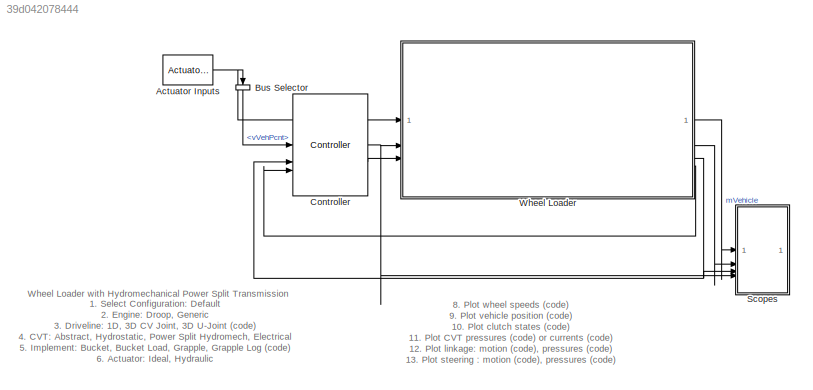
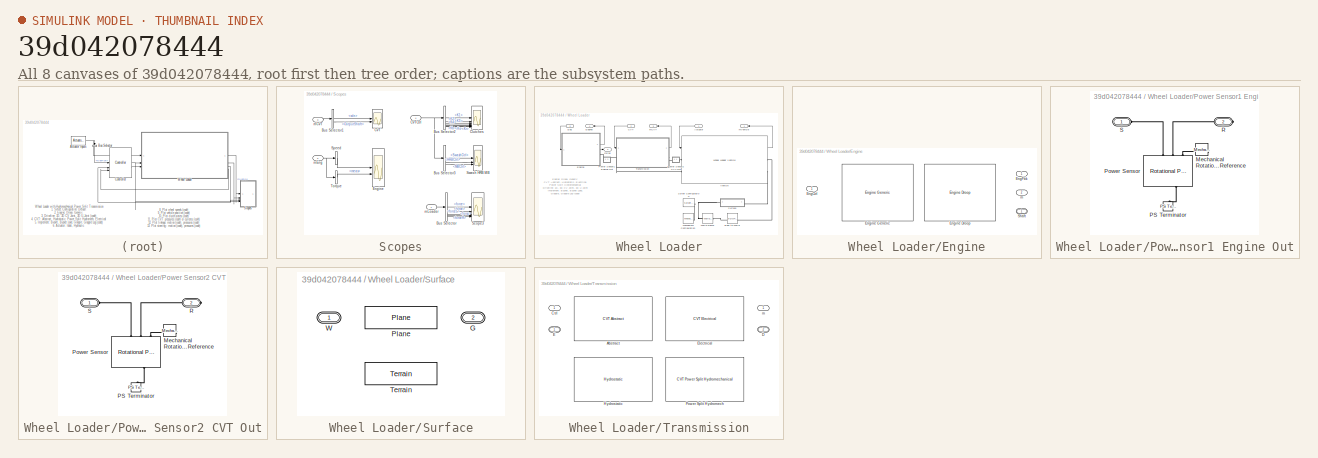
[diagram: thumbnail index - all 8 canvases of the model, root first then tree order]
MODEL slx_39d042078444
KIND model
CONFIG AbsTol = 1e-3
CONFIG EnableMultiTasking = on
CONFIG FixedStep = Ts
CONFIG PostLoadFcn = sm_wheel_loader_config_impl(bdroot,'Bucket')
CONFIG SolverName = daessc
CONFIG StartFcn = tic
CONFIG StopFcn = Elapsed_Sim_Time = toc;\ndisp(['Elapsed Sim Time = ' num2str(Elapsed_Sim_Time)]);
CONFIG StopTime = stopTime
BLOCK [Reference] Actuator Inputs  REF=sm_wheel_loader_lib/Actuator Inputs  (lib defined in slx_2f13f0afc9e9, slx_78fdec152d5c)
  AttributesFormatString = %<popup_impl>
  SourceBlock = sm_wheel_loader_lib/Actuator Inputs
BLOCK [BusSelector] Bus Selector
  NameLocation = right
  OutputSignals = Operator.vVehPcnt
BLOCK [Reference] Controller  REF=sm_wheel_loader_lib/Controller  (lib defined in slx_2f13f0afc9e9, slx_78fdec152d5c)
  LibrarySourceBlock = sm_wheel_loader_lib/Controller New
  SourceBlock = sm_wheel_loader_lib/Controller
  SourceType = SubSystem
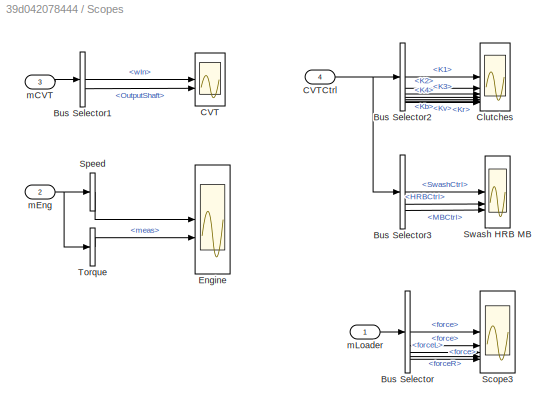
BLOCK [SubSystem] Scopes
BLOCK [BusSelector] Scopes/Bus Selector
  OutputSignals = Linkage.Tilt.force,Linkage.Lift.force,Linkage.Impl.forceL,Linkage.Impl.forceR,Steer.force
BLOCK [BusSelector] Scopes/Bus Selector1
  OutputSignals = wIn,OutputShaft
BLOCK [BusSelector] Scopes/Bus Selector2
  NameLocation = top
  OutputSignals = K1,K2,K3,K4,Kb,Kv,Kr
BLOCK [BusSelector] Scopes/Bus Selector3
  OutputSignals = SwashCtrl,HRBCtrl,MBCtrl
BLOCK [Scope] Scopes/CVT
  ActiveDisplayYMaximum = 1460.04785
  ActiveDisplayYMinimum = -1460.02488
  DataLoggingVariableName = ScopeData4
  Floating = off
  GraphicalSettings = {"GraphicalSettings":{"LegacySettings":true,"Style":{"Style":{"AxesColor":"[0 0 0]","ChannelNames":["",""],"ColorOrder":"[1 1 0.0666666666666667;0.0745098039215686 0.623529411764706 1;1 0.411764705882353 0.16078431372549;0.392156862745098 0.831372549019608 0.0745098039215686;0.717647058823529 0.274509803921569 1;0.0588235294117647 1 1;1 0.0745098039215686 0.650980392156863]","CurrentConfiguration"...<+374ch>
  LayoutDimensionsString = [2 1]
  MultipleDisplayCache = [{"MaxYLimMag":1460.04785,"MaxYLimReal":1460.04785,"MinYLimMag":0,"MinYLimReal":-1460.02488,"PlotAsMagnitudePhase":false,"ShowGrid":true,"ShowLegend":false,"Title":"%<SignalLabel>","YLabel":""},{"MaxYLimMag":10,"MaxYLimReal":11.77737,"MinYLimMag":0,"MinYLimReal":10.91361,"PlotAsMagnitudePhase":false,"ShowGrid":true,"ShowLegend":false,"Title":"%<SignalLabel>","YLabel":""}]
  NumInputPorts = 2
  WasSavedAsWebScope = on
  WindowPosition = [434 93 560 420]
BLOCK [Inport] Scopes/CVTCtrl
  Port = 4
BLOCK [Scope] Scopes/Clutches
  ActiveDisplayYMaximum = 1.125
  ActiveDisplayYMinimum = -0.125
  DataLoggingVariableName = ScopeData3
  Floating = off
  GraphicalSettings = {"GraphicalSettings":{"LegacySettings":true,"Style":{"Style":{"AxesColor":"[0 0 0]","ChannelNames":["","","","","","","",""],"ColorOrder":"[1 1 0.0666666666666667;0.0745098039215686 0.623529411764706 1;1 0.411764705882353 0.16078431372549;0.392156862745098 0.831372549019608 0.0745098039215686;0.717647058823529 0.274509803921569 1;0.0588235294117647 1 1;1 0.0745098039215686 0.650980392156863]","Cur...<+586ch>
  LayoutDimensionsString = [4 2]
  MultipleDisplayCache = [{"MaxYLimMag":1.125,"MaxYLimReal":1.125,"MinYLimMag":0,"MinYLimReal":-0.125,"PlotAsMagnitudePhase":false,"ShowGrid":true,"ShowLegend":false,"Title":"%<SignalLabel>","YLabel":""},{"MaxYLimMag":10,"MaxYLimReal":1.125,"MinYLimMag":0,"MinYLimReal":-0.125,"PlotAsMagnitudePhase":false,"ShowGrid":true,"ShowLegend":false,"Title":"%<SignalLabel>","YLabel":""},{"MaxYLimMag":10,"MaxYLimReal":1.125,"MinYLimM...<+976ch>
  NumInputPorts = 7
  WasSavedAsWebScope = on
BLOCK [Scope] Scopes/Engine
  ActiveDisplayYMaximum = 2176.05829
  ActiveDisplayYMinimum = 2171.94007
  DataLoggingVariableName = ScopeData1
  Floating = off
  GraphicalSettings = {"GraphicalSettings":{"LegacySettings":true,"Style":{"AxesScalingProperties":{"ScaleAxesLimitsAtStop":false},"Style":{"AxesColor":"[0 0 0]","ChannelNames":["",""],"ColorOrder":"[1 1 0.0666666666666667;0.0745098039215686 0.623529411764706 1;1 0.411764705882353 0.16078431372549;0.392156862745098 0.831372549019608 0.0745098039215686;0.717647058823529 0.274509803921569 1;0.0588235294117647 1 1;1 0.074...<+433ch>
  LayoutDimensionsString = [2 1]
  MultipleDisplayCache = [{"MaxYLimMag":2176.05829,"MaxYLimReal":2176.05829,"MinYLimMag":2171.94007,"MinYLimReal":2171.94007,"PlotAsMagnitudePhase":false,"ShowGrid":true,"ShowLegend":true,"Title":"%<SignalLabel>","YLabel":""},{"MaxYLimMag":10,"MaxYLimReal":480.30983,"MinYLimMag":0,"MinYLimReal":-307.50866,"PlotAsMagnitudePhase":false,"ShowGrid":true,"ShowLegend":true,"Title":"%<SignalLabel>","YLabel":""}]
  NumInputPorts = 2
  ShowLegend = on
  WasSavedAsWebScope = on
  WindowPosition = [1206 280 519 463]
BLOCK [Scope] Scopes/Scope3
  ActiveDisplayYMaximum = 93170.95314
  ActiveDisplayYMinimum = -45915.81294
  DataLoggingVariableName = ScopeData1
  Floating = off
  GraphicalSettings = {"GraphicalSettings":{"LegacySettings":true,"Style":{"AxesScalingProperties":{"ScaleAxesLimitsAtStop":false},"Style":{"AxesColor":"[0 0 0]","ChannelNames":[""],"ColorOrder":"[1 1 0.0666666666666667;0.0745098039215686 0.623529411764706 1;1 0.411764705882353 0.16078431372549;0.392156862745098 0.831372549019608 0.0745098039215686;0.717647058823529 0.274509803921569 1;0.0588235294117647 1 1;1 0.074509...<+411ch>
  MultipleDisplayCache = [{"MaxYLimMag":93170.95314,"MaxYLimReal":93170.95314,"MinYLimMag":0,"MinYLimReal":-45915.81294,"PlotAsMagnitudePhase":false,"ShowGrid":true,"ShowLegend":true,"Title":"%<SignalLabel>","YLabel":""}]
  NumInputPorts = 5
  ShowLegend = on
  WasSavedAsWebScope = on
  WindowPosition = [1106 348 560 420]
BLOCK [BusSelector] Scopes/Speed
  OutputAsBus = on
  OutputSignals = w.cmd,w.meas
BLOCK [Scope] Scopes/Swash HRB MB
  ActiveDisplayYMaximum = 1.21887
  ActiveDisplayYMinimum = -0.96987
  DataLoggingVariableName = ScopeData4
  Floating = off
  GraphicalSettings = {"GraphicalSettings":{"LegacySettings":true,"Style":{"Style":{"AxesColor":"[0 0 0]","ChannelNames":[""],"ColorOrder":"[1 1 0.0666666666666667;0.0745098039215686 0.623529411764706 1;1 0.411764705882353 0.16078431372549;0.392156862745098 0.831372549019608 0.0745098039215686;0.717647058823529 0.274509803921569 1;0.0588235294117647 1 1;1 0.0745098039215686 0.650980392156863]","CurrentConfiguration":"e...<+384ch>
  MultipleDisplayCache = [{"MaxYLimMag":1.21887,"MaxYLimReal":1.21887,"MinYLimMag":0,"MinYLimReal":-0.96987,"PlotAsMagnitudePhase":false,"ShowGrid":true,"ShowLegend":false,"Title":"%<SignalLabel>","YLabel":""}]
  NumInputPorts = 3
  WasSavedAsWebScope = on
BLOCK [BusSelector] Scopes/Torque
  OutputSignals = trq.meas
BLOCK [Inport] Scopes/mCVT
  Port = 3
BLOCK [Inport] Scopes/mEng
  Port = 2
BLOCK [Inport] Scopes/mLoader
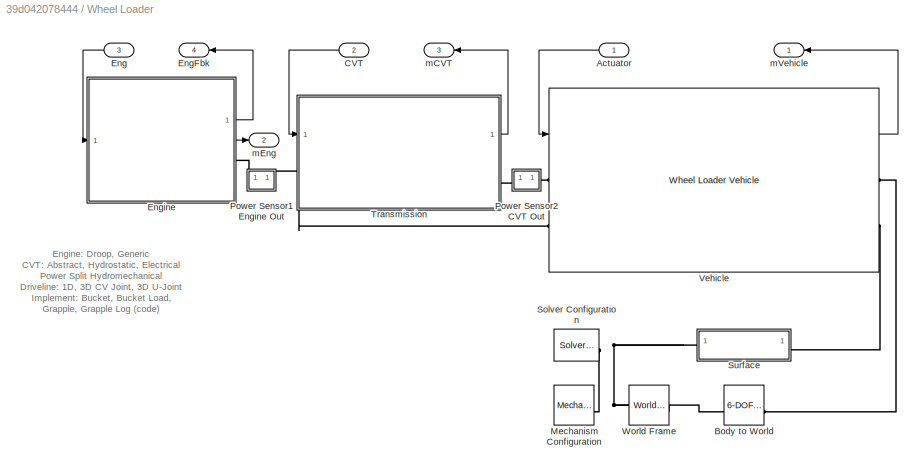
BLOCK [SubSystem] Wheel Loader
  AttributesFormatString = Driveline %<popup_driveline>, %<popup_impl>, %<popup_surface>\nActuator: %<popup_actuator_model>, CVT: %<popup_cvt>
BLOCK [Inport] Wheel Loader/Actuator
BLOCK [Reference] Wheel Loader/Body to World  REF=sm_lib/Joints/6-DOF Joint
  SourceBlock = sm_lib/Joints/6-DOF Joint
  SourceType = 6-DOF Joint
BLOCK [Inport] Wheel Loader/CVT
  Port = 2
BLOCK [Inport] Wheel Loader/Eng
  Port = 3
BLOCK [Outport] Wheel Loader/EngFbk
  Port = 4
BLOCK [SubSystem] Wheel Loader/Engine
  AttributesFormatString = %<LabelModeActiveChoice>
  LabelModeActiveChoice = Droop
  Variant = on
  VariantControl = Choice
  VariantControlMode = label
BLOCK [Inport] Wheel Loader/Engine/EngCtrl
BLOCK [Outport] Wheel Loader/Engine/EngFbk
BLOCK [Reference] Wheel Loader/Engine/Engine Droop  REF=sm_wheel_loader_lib/Engine Droop  (lib defined in slx_2f13f0afc9e9, slx_78fdec152d5c)
  SourceBlock = sm_wheel_loader_lib/Engine Droop
BLOCK [Reference] Wheel Loader/Engine/Engine Generic  REF=sm_wheel_loader_lib/Engine Generic  (lib defined in slx_2f13f0afc9e9, slx_78fdec152d5c)
  SourceBlock = sm_wheel_loader_lib/Engine Generic
BLOCK [PMIOPort] Wheel Loader/Engine/Shaft
  Side = Right
BLOCK [Outport] Wheel Loader/Engine/m
  Port = 2
BLOCK [Reference] Wheel Loader/Mechanism Configuration  REF=sm_lib/Utilities/Mechanism
Configuration
  SourceBlock = sm_lib/Utilities/Mechanism\nConfiguration
  SourceType = Mechanism\nConfiguration
BLOCK [SubSystem] Wheel Loader/Power Sensor1 Engine Out
BLOCK [Reference] Wheel Loader/Power Sensor1 Engine Out/Mechanical Rotational Reference  REF=fl_lib/Mechanical/Rotational Elements/Mechanical
Rotational Reference
  NameLocation = top
  SourceBlock = fl_lib/Mechanical/Rotational Elements/Mechanical\nRotational Reference
  SourceType = Mechanical\nRotational Reference
BLOCK [Reference] Wheel Loader/Power Sensor1 Engine Out/PS Terminator  REF=fl_lib/Physical Signals/Sinks/PS Terminator
  NameLocation = left
  SourceBlock = fl_lib/Physical Signals/Sinks/PS Terminator
  SourceType = PS Terminator
BLOCK [Reference] Wheel Loader/Power Sensor1 Engine Out/Power Sensor  REF=sdl_lib/Sensors/Rotational Power
Sensor
  NameLocation = left
  SourceBlock = sdl_lib/Sensors/Rotational Power\nSensor
  SourceType = Rotational Power\nSensor
BLOCK [PMIOPort] Wheel Loader/Power Sensor1 Engine Out/R
  Port = 2
  Side = Right
BLOCK [PMIOPort] Wheel Loader/Power Sensor1 Engine Out/S
  Side = Left
BLOCK [SubSystem] Wheel Loader/Power Sensor2 CVT Out
BLOCK [Reference] Wheel Loader/Power Sensor2 CVT Out/Mechanical Rotational Reference  REF=fl_lib/Mechanical/Rotational Elements/Mechanical
Rotational Reference
  NameLocation = top
  SourceBlock = fl_lib/Mechanical/Rotational Elements/Mechanical\nRotational Reference
  SourceType = Mechanical\nRotational Reference
BLOCK [Reference] Wheel Loader/Power Sensor2 CVT Out/PS Terminator  REF=fl_lib/Physical Signals/Sinks/PS Terminator
  NameLocation = left
  SourceBlock = fl_lib/Physical Signals/Sinks/PS Terminator
  SourceType = PS Terminator
BLOCK [Reference] Wheel Loader/Power Sensor2 CVT Out/Power Sensor  REF=sdl_lib/Sensors/Rotational Power
Sensor
  NameLocation = left
  SourceBlock = sdl_lib/Sensors/Rotational Power\nSensor
  SourceType = Rotational Power\nSensor
BLOCK [PMIOPort] Wheel Loader/Power Sensor2 CVT Out/R
  Port = 2
  Side = Right
BLOCK [PMIOPort] Wheel Loader/Power Sensor2 CVT Out/S
  Side = Left
BLOCK [Reference] Wheel Loader/Solver Configuration  REF=nesl_utility/Solver
Configuration
  SourceBlock = nesl_utility/Solver\nConfiguration
  SourceType = Solver\nConfiguration
BLOCK [SubSystem] Wheel Loader/Surface
  LabelModeActiveChoice = Plane
  Variant = on
  VariantControl = Choice
  VariantControlMode = label
BLOCK [PMIOPort] Wheel Loader/Surface/G
  Port = 2
  Side = Right
BLOCK [Reference] Wheel Loader/Surface/Plane  REF=wheel_loader_contact_lib/Plane  (lib defined in slx_c9c847b5a653, slx_ee41a34c1fd8)
  SourceBlock = wheel_loader_contact_lib/Plane
BLOCK [Reference] Wheel Loader/Surface/Terrain  REF=wheel_loader_contact_lib/Terrain  (lib defined in slx_c9c847b5a653, slx_ee41a34c1fd8)
  SourceBlock = wheel_loader_contact_lib/Terrain
BLOCK [PMIOPort] Wheel Loader/Surface/W
  Side = Left
BLOCK [SubSystem] Wheel Loader/Transmission
  AttributesFormatString = %<LabelModeActiveChoice>
  LabelModeActiveChoice = Abstract
  Variant = on
  VariantControl = Choice
  VariantControlMode = label
BLOCK [Reference] Wheel Loader/Transmission/Abstract  REF=sm_wheel_loader_lib/CVT Abstract  (lib defined in slx_2f13f0afc9e9, slx_78fdec152d5c)
  SourceBlock = sm_wheel_loader_lib/CVT Abstract
  SourceType = Continuously Variable Transmission (Abstract)
BLOCK [Inport] Wheel Loader/Transmission/Ctrl
BLOCK [PMIOPort] Wheel Loader/Transmission/D
  Port = 2
  Side = Right
BLOCK [PMIOPort] Wheel Loader/Transmission/E
  Side = Left
BLOCK [Reference] Wheel Loader/Transmission/Electrical  REF=sm_wheel_loader_lib/CVT Electrical  (lib defined in slx_2f13f0afc9e9, slx_78fdec152d5c)
  SourceBlock = sm_wheel_loader_lib/CVT Electrical
  SourceType = Electrical Continuously Variable Transmission (eCVT)
BLOCK [Reference] Wheel Loader/Transmission/Hydrostatic  REF=sm_wheel_loader_lib/Hydrostatic  (lib defined in slx_2f13f0afc9e9, slx_78fdec152d5c)
  SourceBlock = sm_wheel_loader_lib/Hydrostatic
BLOCK [Reference] Wheel Loader/Transmission/Power Split Hydromech  REF=sm_wheel_loader_lib/CVT Power Split Hydromechanical  (lib defined in slx_2f13f0afc9e9, slx_78fdec152d5c)
  LibrarySourceBlock = sm_wheel_loader_lib/CVT Powersplit Hydromechanical
  SourceBlock = sm_wheel_loader_lib/CVT Power Split Hydromechanical
BLOCK [Outport] Wheel Loader/Transmission/m
BLOCK [Reference] Wheel Loader/Vehicle  REF=sm_wheel_loader_lib/Wheel Loader Vehicle  (lib defined in slx_2f13f0afc9e9, slx_78fdec152d5c)
  AttributesFormatString = %<popup_driveline_model> (F: %<popup_driveJointF>, R: %<popup_driveJointR>), %<popup_contact> \n%<popup_actuator_model>, %<popup_impl> %<popup_load>
  SourceBlock = sm_wheel_loader_lib/Wheel Loader Vehicle
  SourceType = Wheel Loader Vehicle
BLOCK [Reference] Wheel Loader/World Frame  REF=sm_lib/Frames and
Transforms/World Frame
  SourceBlock = sm_lib/Frames and\nTransforms/World Frame
  SourceType = World Frame
BLOCK [Outport] Wheel Loader/mCVT
  Port = 3
BLOCK [Outport] Wheel Loader/mEng
  Port = 2
BLOCK [Outport] Wheel Loader/mVehicle
ANNOTATION (root): 8. Plot wheel speeds ( code ) 9. Plot vehicle position ( code ) 10. Plot clutch states ( code ) 11. Plot CVT pressures ( code ) or currents ( code ) 12. Plot linkage: motion ( code ), pressures ( code ) 13. Plot steering : motion ( code ), pressures ( code ) 14. Explore simulation results using sscexplore 15. Learn more about this example
ANNOTATION (root): 1. Select Configuration: Default 2. Engine : Droop , Generic 3. Driveline: 1D , 3D CV Joint , 3D U-Joint ( code ) 4. CVT: Abstract , Hydrostatic , Power Split Hydromech , Electrical 5. Implement: Bucket , Bucket Load , Grapple , Grapple Log ( code ) 6. Actuator: Ideal , Hydraulic 7. Surface: Plane (Spheres) , Plane (Tires) , Terrain
ANNOTATION (root): Wheel Loader with Hydromechanical Power Split Transmission
ANNOTATION Wheel Loader: Engine: Droop , Generic CVT: Abstract , Hydrostatic , Electrical Power Split Hydromechanical Driveline: 1D , 3D CV Joint , 3D U-Joint Implement: Bucket , Bucket Load , Grapple , Grapple Log ( code ) Actuator: Ideal , Hydraulic Surface: Flat Plane , Terrain
NET Actuator Inputs:1 -> Bus Selector:1, Wheel Loader:1
LINE Bus Selector:1 -> Controller:1
NET Controller:1 -> Scopes:4, Wheel Loader:2
LINE Controller:2 -> Wheel Loader:3
LINE Scopes/Bus Selector1:1 -> Scopes/CVT:1
LINE Scopes/Bus Selector1:2 -> Scopes/CVT:2
LINE Scopes/Bus Selector2:1 -> Scopes/Clutches:1
LINE Scopes/Bus Selector2:2 -> Scopes/Clutches:2
LINE Scopes/Bus Selector2:3 -> Scopes/Clutches:3
LINE Scopes/Bus Selector2:4 -> Scopes/Clutches:4
LINE Scopes/Bus Selector2:5 -> Scopes/Clutches:5
LINE Scopes/Bus Selector2:6 -> Scopes/Clutches:6
LINE Scopes/Bus Selector2:7 -> Scopes/Clutches:7
LINE Scopes/Bus Selector3:1 -> Scopes/Swash HRB MB:1
LINE Scopes/Bus Selector3:2 -> Scopes/Swash HRB MB:2
LINE Scopes/Bus Selector3:3 -> Scopes/Swash HRB MB:3
LINE Scopes/Bus Selector:1 -> Scopes/Scope3:1
LINE Scopes/Bus Selector:2 -> Scopes/Scope3:2
LINE Scopes/Bus Selector:3 -> Scopes/Scope3:3
LINE Scopes/Bus Selector:4 -> Scopes/Scope3:4
LINE Scopes/Bus Selector:5 -> Scopes/Scope3:5
NET Scopes/CVTCtrl:1 -> Scopes/Bus Selector2:1, Scopes/Bus Selector3:1
LINE Scopes/Speed:1 -> Scopes/Engine:1
LINE Scopes/Torque:1 -> Scopes/Engine:2
LINE Scopes/mCVT:1 -> Scopes/Bus Selector1:1
NET Scopes/mEng:1 -> Scopes/Speed:1, Scopes/Torque:1
LINE Scopes/mLoader:1 -> Scopes/Bus Selector:1
LINE Wheel Loader/Actuator:1 -> Wheel Loader/Vehicle:1
LINE Wheel Loader/CVT:1 -> Wheel Loader/Transmission:1
LINE Wheel Loader/Eng:1 -> Wheel Loader/Engine:1
LINE Wheel Loader/Engine:1 -> Wheel Loader/EngFbk:1
LINE Wheel Loader/Engine:2 -> Wheel Loader/mEng:1
LINE Wheel Loader/Transmission:1 -> Wheel Loader/mCVT:1
LINE Wheel Loader/Vehicle:1 -> Wheel Loader/mVehicle:1
LINE Wheel Loader:1 -> Scopes:1
LINE Wheel Loader:2 -> Scopes:2
NET Wheel Loader:3 -> Controller:2, Scopes:3
LINE Wheel Loader:4 -> Controller:3
PNET net1: Wheel Loader/Body to World:LConn1 -- Wheel Loader/Mechanism Configuration:RConn1 -- Wheel Loader/Solver Configuration:RConn1 -- Wheel Loader/Surface:LConn1 -- Wheel Loader/World Frame:RConn1
PLINE Wheel Loader/Body to World:RConn1 -- Wheel Loader/Vehicle:RConn1
PLINE Wheel Loader/Engine:RConn1 -- Wheel Loader/Power Sensor1 Engine Out:LConn1
PLINE Wheel Loader/Power Sensor1 Engine Out/Mechanical Rotational Reference:LConn1 -- Wheel Loader/Power Sensor1 Engine Out/Power Sensor:LConn3
PLINE Wheel Loader/Power Sensor1 Engine Out/PS Terminator:LConn1 -- Wheel Loader/Power Sensor1 Engine Out/Power Sensor:RConn1
PLINE Wheel Loader/Power Sensor1 Engine Out/Power Sensor:LConn1 -- Wheel Loader/Power Sensor1 Engine Out/S:RConn1
PLINE Wheel Loader/Power Sensor1 Engine Out/Power Sensor:LConn2 -- Wheel Loader/Power Sensor1 Engine Out/R:RConn1
PNET net2: Wheel Loader/Power Sensor1 Engine Out:RConn1 -- Wheel Loader/Transmission:LConn1 -- Wheel Loader/Vehicle:LConn2
PLINE Wheel Loader/Power Sensor2 CVT Out/Mechanical Rotational Reference:LConn1 -- Wheel Loader/Power Sensor2 CVT Out/Power Sensor:LConn3
PLINE Wheel Loader/Power Sensor2 CVT Out/PS Terminator:LConn1 -- Wheel Loader/Power Sensor2 CVT Out/Power Sensor:RConn1
PLINE Wheel Loader/Power Sensor2 CVT Out/Power Sensor:LConn1 -- Wheel Loader/Power Sensor2 CVT Out/S:RConn1
PLINE Wheel Loader/Power Sensor2 CVT Out/Power Sensor:LConn2 -- Wheel Loader/Power Sensor2 CVT Out/R:RConn1
PLINE Wheel Loader/Power Sensor2 CVT Out:LConn1 -- Wheel Loader/Transmission:RConn1
PLINE Wheel Loader/Power Sensor2 CVT Out:RConn1 -- Wheel Loader/Vehicle:LConn1
PLINE Wheel Loader/Surface:RConn1 -- Wheel Loader/Vehicle:RConn2
note: NET lines group one-source signal fan-out (src -> all destinations, sorted); 1:1 wires keep LINE; PNET lines group multi-terminal physical nets as a canonical sorted terminal list (undirected conserving connections); 2-terminal nets keep the pairwise PLINE form
